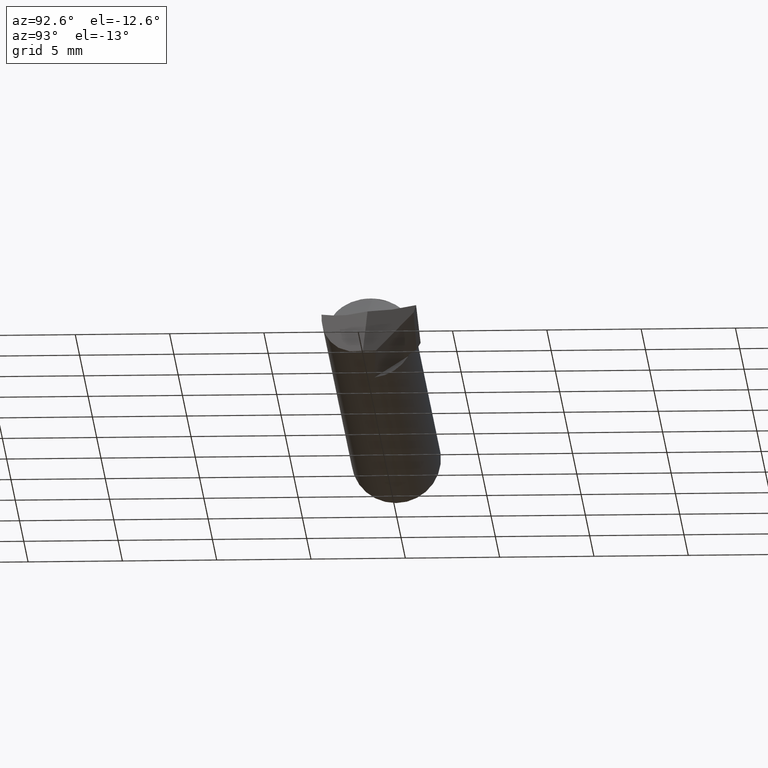
[diagram: clean part render]
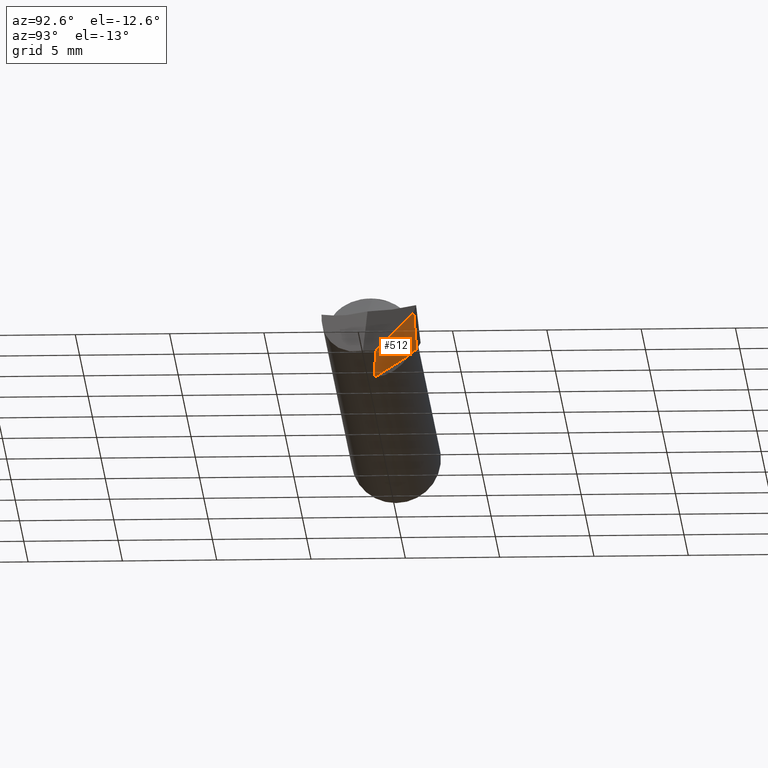
[diagram: same view with one face highlighted and labeled with its STEP entity id]
A machine part, auxiliary view. The second image highlights one B-rep face of the part: STEP entity #512.
In plain terms, the highlighted face is a freeform B-spline surface patch.
Its self-contained STEP definition (entity closure, byte-faithful):
#4 = FACE_OUTER_BOUND ( 'NONE', #578, .T. ) ;
#5 = B_SPLINE_CURVE_WITH_KNOTS ( 'NONE', 3,
 ( #485, #326, #271, #185 ),
 .UNSPECIFIED., .F., .F.,
 ( 4, 4 ),
 ( 0.0002546024990688748623, 0.006558907732038877537 ),
 .UNSPECIFIED. ) ;
#10 = CARTESIAN_POINT ( 'NONE',  ( 1.239999999999999991, 0.08074344207419088815, -0.04744279778861885261 ) ) ;
#12 = VERTEX_POINT ( 'NONE', #541 ) ;
#47 = EDGE_CURVE ( 'NONE', #430, #12, #613, .T. ) ;
#49 = CARTESIAN_POINT ( 'NONE',  ( 1.307142857142857606, -0.03051731478104647774, -0.1268900357535900081 ) ) ;
#60 =( BOUNDED_CURVE ( )  B_SPLINE_CURVE ( 1, ( #670, #99 ),
 .UNSPECIFIED., .F., .T. ) 
 B_SPLINE_CURVE_WITH_KNOTS ( ( 2, 2 ),
 ( 0.002893631882954620250, 0.003411947105638062343 ),
 .UNSPECIFIED. ) 
 CURVE ( )  GEOMETRIC_REPRESENTATION_ITEM ( )  RATIONAL_B_SPLINE_CURVE ( ( 0.9945822379532474056, 0.9945822379532474056 ) ) 
 REPRESENTATION_ITEM ( '' )  );
#79 = ORIENTED_EDGE ( 'NONE', *, *, #343, .T. ) ;
#97 = CARTESIAN_POINT ( 'NONE',  ( 1.307142857142857606, 0.1009593191957870867, -0.03136666973042469969 ) ) ;
#99 = CARTESIAN_POINT ( 'NONE',  ( 1.239999999999999991, 0.09788107471506568569, -0.03636530173190486576 ) ) ;
#105 = ORIENTED_EDGE ( 'NONE', *, *, #47, .T. ) ;
#108 = ORIENTED_EDGE ( 'NONE', *, *, #229, .T. ) ;
#110 = CARTESIAN_POINT ( 'NONE',  ( 1.229999274822195510, 0.08034742759774918253, -0.04811042881477656241 ) ) ;
#127 = VERTEX_POINT ( 'NONE', #391 ) ;
#152 = ORIENTED_EDGE ( 'NONE', *, *, #153, .F. ) ;
#153 = EDGE_CURVE ( 'NONE', #314, #12, #653, .T. ) ;
#154 = CARTESIAN_POINT ( 'NONE',  ( 0.9214285714285728179, -0.06823486854704864657, -0.1112492264663436647 ) ) ;
#163 = ORIENTED_EDGE ( 'NONE', *, *, #516, .F. ) ;
#177 =( BOUNDED_CURVE ( )  B_SPLINE_CURVE ( 1, ( #216, #418 ),
 .UNSPECIFIED., .F., .T. ) 
 B_SPLINE_CURVE_WITH_KNOTS ( ( 2, 2 ),
 ( 0.0007316003027894401158, 0.0007571755484555225480 ),
 .UNSPECIFIED. ) 
 CURVE ( )  GEOMETRIC_REPRESENTATION_ITEM ( )  RATIONAL_B_SPLINE_CURVE ( ( 0.9945822379532474056, 0.9945822379532474056 ) ) 
 REPRESENTATION_ITEM ( '' )  );
#185 = CARTESIAN_POINT ( 'NONE',  ( 1.487763293907420126, 0.02399154554081828553, -0.09364999999999999714 ) ) ;
#194 = CARTESIAN_POINT ( 'NONE',  ( 1.230000000000000204, 0.09757429370828984982, -0.03718060199562600587 ) ) ;
#214 = CARTESIAN_POINT ( 'NONE',  ( 1.487763293907420126, 0.02399154554081828553, -0.09364999999999999714 ) ) ;
#216 = CARTESIAN_POINT ( 'NONE',  ( 1.240000000000000213, 0.009257787481579626832, -0.09365000000000006652 ) ) ;
#224 = ORIENTED_EDGE ( 'NONE', *, *, #373, .F. ) ;
#229 = EDGE_CURVE ( 'NONE', #369, #127, #60, .T. ) ;
#241 = VERTEX_POINT ( 'NONE', #305 ) ;
#255 = B_SPLINE_CURVE_WITH_KNOTS ( 'NONE', 3,
 ( #214, #624, #460, #526 ),
 .UNSPECIFIED., .F., .F.,
 ( 4, 4 ),
 ( 2.604727758722901035E-05, 0.002872561671176806445 ),
 .UNSPECIFIED. ) ;
#256 = CARTESIAN_POINT ( 'NONE',  ( 1.114285714285715212, 0.09364225179700762236, -0.04619814537202305421 ) ) ;
#265 = CARTESIAN_POINT ( 'NONE',  ( 1.229999274822195510, 0.08034742759774918253, -0.04811042881477656241 ) ) ;
#271 = CARTESIAN_POINT ( 'NONE',  ( 1.405162067882042454, 0.01930639470269339755, -0.09364999999999995550 ) ) ;
#278 = CARTESIAN_POINT ( 'NONE',  ( 1.239999999999999991, 0.08074344207419088815, -0.04744279778861885261 ) ) ;
#305 = CARTESIAN_POINT ( 'NONE',  ( 1.240000000000000213, 0.009257787481579626832, -0.09365000000000006652 ) ) ;
#314 = VERTEX_POINT ( 'NONE', #110 ) ;
#315 = CARTESIAN_POINT ( 'NONE',  ( 0.9214285714285728179, 0.08632518439822819967, -0.06102962101362140179 ) ) ;
#325 = CARTESIAN_POINT ( 'NONE',  ( 1.229997824466591005, 0.009341362891033938229, -0.09318294598088670833 ) ) ;
#326 = CARTESIAN_POINT ( 'NONE',  ( 1.322563398559102099, 0.01457830066443163014, -0.09364999999999999714 ) ) ;
#328 = ORIENTED_EDGE ( 'NONE', *, *, #386, .T. ) ;
#340 =( BOUNDED_CURVE ( )  B_SPLINE_CURVE ( 2, ( #265, #523, #10 ),
 .UNSPECIFIED., .F., .T. ) 
 B_SPLINE_CURVE_WITH_KNOTS ( ( 3, 3 ),
 ( 0.6505143596091164104, 0.6634345089193172118 ),
 .UNSPECIFIED. ) 
 CURVE ( )  GEOMETRIC_REPRESENTATION_ITEM ( )  RATIONAL_B_SPLINE_CURVE ( ( 0.9948189969154002110, 0.9946923966803868922, 0.9945822379532399671 ) ) 
 REPRESENTATION_ITEM ( '' )  );
#343 = EDGE_CURVE ( 'NONE', #314, #369, #340, .T. ) ;
#369 = VERTEX_POINT ( 'NONE', #278 ) ;
#371 = CARTESIAN_POINT ( 'NONE',  ( 1.498093014994710481, 0.1033114702713285454, -0.01516179632514417543 ) ) ;
#373 = EDGE_CURVE ( 'NONE', #483, #127, #552, .T. ) ;
#374 = CARTESIAN_POINT ( 'NONE',  ( 1.369734063093712262, 0.1017135818884408738, -0.02604970133489082837 ) ) ;
#386 = EDGE_CURVE ( 'NONE', #241, #430, #177, .T. ) ;
#391 = CARTESIAN_POINT ( 'NONE',  ( 1.239999999999999991, 0.09788107471506568569, -0.03636530173190486576 ) ) ;
#417 = CARTESIAN_POINT ( 'NONE',  ( 1.500000000000000222, 0.1033350858006551326, -0.01499999999999999944 ) ) ;
#418 = CARTESIAN_POINT ( 'NONE',  ( 1.240000000000000213, 0.01010341027200484937, -0.09310340273521444665 ) ) ;
#429 = CARTESIAN_POINT ( 'NONE',  ( 1.240000000000000213, 0.01010341027200484937, -0.09310340273521444665 ) ) ;
#430 = VERTEX_POINT ( 'NONE', #429 ) ;
#447 = ORIENTED_EDGE ( 'NONE', *, *, #662, .F. ) ;
#460 = CARTESIAN_POINT ( 'NONE',  ( 1.494624434142508340, 0.07709563099491963112, -0.04154683450407894302 ) ) ;
#463 = CARTESIAN_POINT ( 'NONE',  ( 1.500000000000000222, -0.01016491419934357175, -0.1284999999999999754 ) ) ;
#467 = CARTESIAN_POINT ( 'NONE',  ( 0.7285714285714303129, 0.07478306174353623048, -0.07287409439362664554 ) ) ;
#483 = VERTEX_POINT ( 'NONE', #488 ) ;
#485 = CARTESIAN_POINT ( 'NONE',  ( 1.240000000000000213, 0.009257787481579626832, -0.09365000000000006652 ) ) ;
#488 = CARTESIAN_POINT ( 'NONE',  ( 1.498093014994710481, 0.1033114702713285454, -0.01516179632514417543 ) ) ;
#511 = CARTESIAN_POINT ( 'NONE',  ( 1.487763293907420126, 0.02399154554081828553, -0.09364999999999999714 ) ) ;
#512 = ADVANCED_FACE ( 'NONE', ( #4 ), #648, .T. ) ;
#516 = EDGE_CURVE ( 'NONE', #521, #483, #255, .T. ) ;
#521 = VERTEX_POINT ( 'NONE', #511 ) ;
#523 = CARTESIAN_POINT ( 'NONE',  ( 1.234997358171130433, 0.08055064010576537537, -0.04777092967153871717 ) ) ;
#526 = CARTESIAN_POINT ( 'NONE',  ( 1.498093014994710481, 0.1033114702713285454, -0.01516179632514417543 ) ) ;
#534 = CARTESIAN_POINT ( 'NONE',  ( 1.234997358170834669, 0.009725048957912117709, -0.09314446181012504822 ) ) ;
#541 = CARTESIAN_POINT ( 'NONE',  ( 1.229997824466591005, 0.009341362891033938229, -0.09318294598088670833 ) ) ;
#552 =( BOUNDED_CURVE ( )  B_SPLINE_CURVE ( 2, ( #371, #374, #584 ),
 .UNSPECIFIED., .F., .F. ) 
 B_SPLINE_CURVE_WITH_KNOTS ( ( 3, 3 ),
 ( 0.002502368612307680727, 0.3365654910811019529 ),
 .UNSPECIFIED. ) 
 CURVE ( )  GEOMETRIC_REPRESENTATION_ITEM ( )  RATIONAL_B_SPLINE_CURVE ( ( 0.9998773835097440887, 0.9917339761046763957, 0.9945822379532470725 ) ) 
 REPRESENTATION_ITEM ( '' )  );
#559 = DIRECTION ( 'NONE',  ( 0.000000000000000000, -0.8443279255020124108, -0.5358267949790009865 ) ) ;
#573 = CARTESIAN_POINT ( 'NONE',  ( 1.114285714285715212, -0.04937609166404756389, -0.1190696311099668364 ) ) ;
#578 = EDGE_LOOP ( 'NONE', ( #163, #447, #328, #105, #152, #79, #108, #224 ) ) ;
#584 = CARTESIAN_POINT ( 'NONE',  ( 1.239999999999999991, 0.09788107471506568569, -0.03636530173190486576 ) ) ;
#613 =( BOUNDED_CURVE ( )  B_SPLINE_CURVE ( 2, ( #639, #534, #325 ),
 .UNSPECIFIED., .F., .T. ) 
 B_SPLINE_CURVE_WITH_KNOTS ( ( 3, 3 ),
 ( 0.3365654910811017864, 0.3494856403912284248 ),
 .UNSPECIFIED. ) 
 CURVE ( )  GEOMETRIC_REPRESENTATION_ITEM ( )  RATIONAL_B_SPLINE_CURVE ( ( 0.9945822379532471835, 0.9946923966803941086, 0.9948189969154072054 ) ) 
 REPRESENTATION_ITEM ( '' )  );
#623 = VECTOR ( 'NONE', #559, 39.37007874015748143 ) ;
#624 = CARTESIAN_POINT ( 'NONE',  ( 1.491181280851205271, 0.05065302880610507430, -0.06770867322618516482 ) ) ;
#627 = CARTESIAN_POINT ( 'NONE',  ( 0.7285714285714303129, -0.08375399325321494781, -0.09798389711998821416 ) ) ;
#639 = CARTESIAN_POINT ( 'NONE',  ( 1.240000000000000213, 0.01010341027200484937, -0.09310340273521444665 ) ) ;
#648 =( BOUNDED_SURFACE ( )  B_SPLINE_SURFACE ( 1, 2, ( 
 ( #417, #97, #256, #315, #467 ),
 ( #463, #49, #573, #154, #627 ) ),
 .UNSPECIFIED., .F., .F., .T. ) 
 B_SPLINE_SURFACE_WITH_KNOTS ( ( 2, 2 ),
 ( 3, 2, 3 ),
 ( 0.000000000000000000, 1.000000000000000000 ),
 ( 0.000000000000000000, 0.5000000000000000000, 1.000000000000000000 ),
 .UNSPECIFIED. ) 
 GEOMETRIC_REPRESENTATION_ITEM ( )  RATIONAL_B_SPLINE_SURFACE ( (
 ( 1.000000000000000000, 0.9876883405951377704, 1.000000000000000000, 0.9876883405951377704, 1.000000000000000000),
 ( 1.000000000000000000, 0.9876883405951377704, 1.000000000000000000, 0.9876883405951377704, 1.000000000000000000) ) ) 
 REPRESENTATION_ITEM ( '' )  SURFACE ( )  );
#653 = LINE ( 'NONE', #194, #623 ) ;
#662 = EDGE_CURVE ( 'NONE', #241, #521, #5, .T. ) ;
#670 = CARTESIAN_POINT ( 'NONE',  ( 1.239999999999999991, 0.08074344207419088815, -0.04744279778861885261 ) ) ;